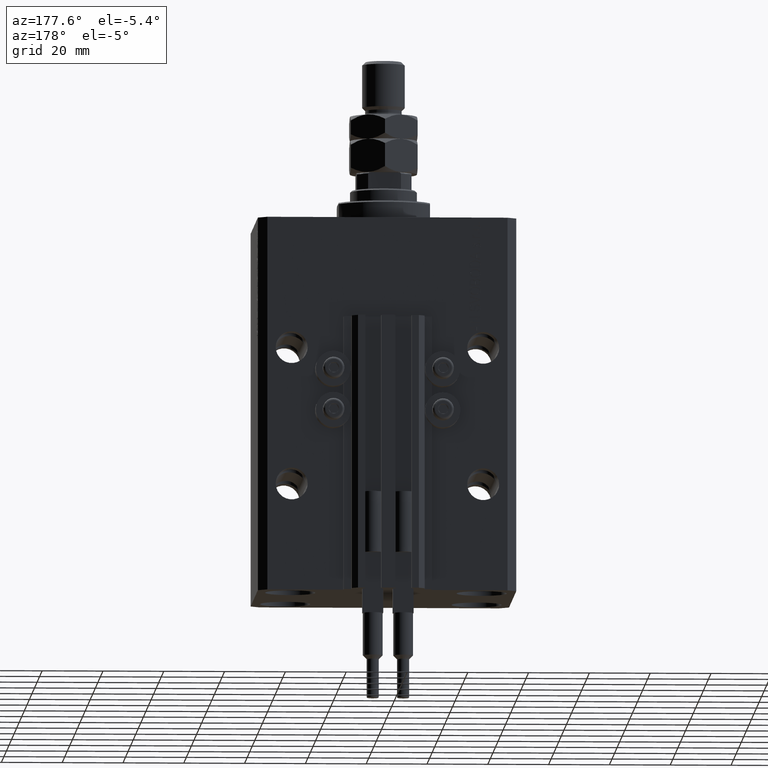
[diagram: clean part render]
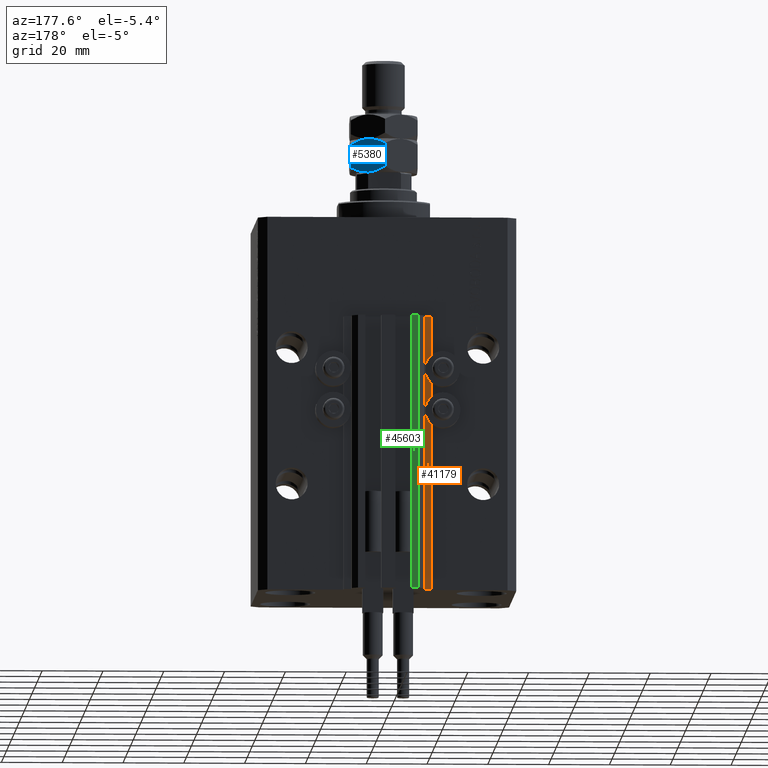
[diagram: same view with three faces highlighted in distinct colors, each labeled with its STEP entity id]
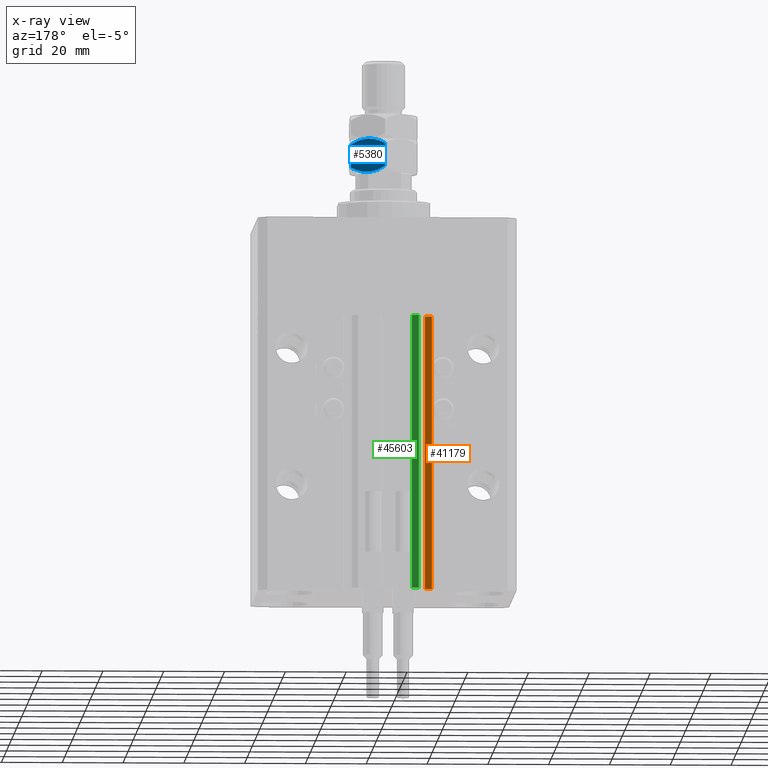
[diagram: x-ray of the same camera — body ghosted, the three highlighted faces saturated]
A machine part, auxiliary view with three faces highlighted in distinct colors.
The next image is the same camera in x-ray (body ghosted, the three faces saturated) — at least one of them is partly hidden behind the body in this view.
Their STEP definitions:

[orange] entity #41179 — the highlighted planar face has unit normal (0, 1, 0).
#2599 = VECTOR ( 'NONE', #10306, 1000.000000000000000 ) ;
#4446 = DIRECTION ( 'NONE',  ( 0.000000000000000000, 0.000000000000000000, 1.000000000000000000 ) ) ;
#4746 = CARTESIAN_POINT ( 'NONE',  ( -12.20000000000000107, 33.99999999999998579, -33.00000000000000000 ) ) ;
#7156 = CARTESIAN_POINT ( 'NONE',  ( -12.20000000000000107, 33.99999999999998579, -123.0000000000000000 ) ) ;
#9769 = EDGE_CURVE ( 'NONE', #34241, #37339, #22725, .T. ) ;
#10306 = DIRECTION ( 'NONE',  ( 0.000000000000000000, 0.000000000000000000, 1.000000000000000000 ) ) ;
#11448 = VERTEX_POINT ( 'NONE', #46479 ) ;
#12105 = CARTESIAN_POINT ( 'NONE',  ( -12.20000000000000107, 33.99999999999998579, -123.0000000000000000 ) ) ;
#13813 = LINE ( 'NONE', #42132, #36737 ) ;
#15490 = EDGE_CURVE ( 'NONE', #34241, #37950, #30780, .T. ) ;
#17057 = LINE ( 'NONE', #44624, #41712 ) ;
#18915 = ORIENTED_EDGE ( 'NONE', *, *, #9769, .F. ) ;
#19026 = CARTESIAN_POINT ( 'NONE',  ( -12.20000000000000107, 33.99999999999998579, -123.0000000000000000 ) ) ;
#19100 = CARTESIAN_POINT ( 'NONE',  ( -12.20000000000000107, 33.99999999999998579, -123.0000000000000000 ) ) ;
#20131 = DIRECTION ( 'NONE',  ( -1.000000000000000000, 0.000000000000000000, 0.000000000000000000 ) ) ;
#22725 = LINE ( 'NONE', #7156, #2599 ) ;
#26895 = ORIENTED_EDGE ( 'NONE', *, *, #15490, .T. ) ;
#27435 = FACE_OUTER_BOUND ( 'NONE', #28470, .T. ) ;
#28470 = EDGE_LOOP ( 'NONE', ( #29426, #18915, #26895, #38695 ) ) ;
#29426 = ORIENTED_EDGE ( 'NONE', *, *, #48233, .F. ) ;
#30148 = DIRECTION ( 'NONE',  ( 0.000000000000000000, 0.000000000000000000, 1.000000000000000000 ) ) ;
#30780 = LINE ( 'NONE', #19026, #40392 ) ;
#31203 = CARTESIAN_POINT ( 'NONE',  ( -14.50000000000000000, 33.99999999999998579, -123.0000000000000000 ) ) ;
#31538 = DIRECTION ( 'NONE',  ( 0.000000000000000000, 1.000000000000000000, -0.000000000000000000 ) ) ;
#31955 = AXIS2_PLACEMENT_3D ( 'NONE', #12105, #31538, #4446 ) ;
#34241 = VERTEX_POINT ( 'NONE', #19100 ) ;
#36737 = VECTOR ( 'NONE', #30148, 1000.000000000000000 ) ;
#37339 = VERTEX_POINT ( 'NONE', #4746 ) ;
#37931 = DIRECTION ( 'NONE',  ( -1.000000000000000000, 0.000000000000000000, 0.000000000000000000 ) ) ;
#37950 = VERTEX_POINT ( 'NONE', #31203 ) ;
#38695 = ORIENTED_EDGE ( 'NONE', *, *, #45116, .T. ) ;
#40206 = PLANE ( 'NONE',  #31955 ) ;
#40392 = VECTOR ( 'NONE', #37931, 1000.000000000000000 ) ;
#41179 = ADVANCED_FACE ( 'NONE', ( #27435 ), #40206, .T. ) ;
#41712 = VECTOR ( 'NONE', #20131, 1000.000000000000000 ) ;
#42132 = CARTESIAN_POINT ( 'NONE',  ( -14.50000000000000000, 33.99999999999998579, -123.0000000000000000 ) ) ;
#44624 = CARTESIAN_POINT ( 'NONE',  ( -12.20000000000000107, 33.99999999999998579, -33.00000000000000000 ) ) ;
#45116 = EDGE_CURVE ( 'NONE', #37950, #11448, #13813, .T. ) ;
#46479 = CARTESIAN_POINT ( 'NONE',  ( -14.50000000000000000, 33.99999999999998579, -33.00000000000000000 ) ) ;
#48233 = EDGE_CURVE ( 'NONE', #37339, #11448, #17057, .T. ) ;

[blue] entity #5380 — the highlighted planar face has unit normal (-0.5, -0.866, 0).
#335 = VERTEX_POINT ( 'NONE', #2786 ) ;
#1284 = CARTESIAN_POINT ( 'NONE',  ( 4.543329525579426154, 10.07861339756131080, 11.00000000000000000 ) ) ;
#2179 = CARTESIAN_POINT ( 'NONE',  ( 3.579894028994819788, 10.63485314086127431, 0.2081220748670722098 ) ) ;
#2614 = CARTESIAN_POINT ( 'NONE',  ( 7.420105971005182433, 8.417705742396377033, 10.79187792513293154 ) ) ;
#2786 = CARTESIAN_POINT ( 'NONE',  ( 9.006588997586899406E-16, 12.70170592217176342, 1.701705922171758312 ) ) ;
#3093 = CARTESIAN_POINT ( 'NONE',  ( 6.470625887979895019, 8.965888323921213043, 10.95634070256487824 ) ) ;
#3158 = CARTESIAN_POINT ( 'NONE',  ( 0.8624791307172143817, 12.20375336388174503, 1.203753363881742811 ) ) ;
#4193 = CARTESIAN_POINT ( 'NONE',  ( 5.499999999999999112, 9.526279441628826561, 0.000000000000000000 ) ) ;
#4455 = PLANE ( 'NONE',  #49088 ) ;
#5380 = ADVANCED_FACE ( 'NONE', ( #38926 ), #4455, .F. ) ;
#7774 = DIRECTION ( 'NONE',  ( 0.8660254037844387076, -0.4999999999999998890, 0.000000000000000000 ) ) ;
#8947 = CARTESIAN_POINT ( 'NONE',  ( 3.602926119288152318, 10.62155555733041901, 10.83109139163524581 ) ) ;
#10144 = CARTESIAN_POINT ( 'NONE',  ( 11.00000000000000000, 6.350852961085883486, 1.701705922171761198 ) ) ;
#10341 = CARTESIAN_POINT ( 'NONE',  ( 3.115032419653387397, 10.90324111615047364, 0.3282192120904029453 ) ) ;
#11022 = CARTESIAN_POINT ( 'NONE',  ( 11.00000000000000000, 6.350852961085883486, 9.298294077828240134 ) ) ;
#11691 = B_SPLINE_CURVE_WITH_KNOTS ( 'NONE', 3,
 ( #11022, #30188, #50096, #22516, #2614, #3093, #18191, #46249 ),
 .UNSPECIFIED., .F., .F.,
 ( 4, 2, 2, 4 ),
 ( 2.544311317614349830E-07, 0.003291871675740032106, 0.004937680298044164716, 0.006583488920348298627 ),
 .UNSPECIFIED. ) ;
#11792 = B_SPLINE_CURVE_WITH_KNOTS ( 'NONE', 3,
 ( #36283, #1284, #8947, #17364, #28363, #40602 ),
 .UNSPECIFIED., .F., .F.,
 ( 4, 2, 4 ),
 ( 0.006583488920348298627, 0.009852050593448711396, 0.01312061226654912156 ),
 .UNSPECIFIED. ) ;
#13339 = B_SPLINE_CURVE_WITH_KNOTS ( 'NONE', 3,
 ( #41993, #3158, #18746, #10341, #2179, #17755, #33350, #4193 ),
 .UNSPECIFIED., .F., .F.,
 ( 4, 2, 2, 4 ),
 ( 2.544311317623912303E-07, 0.003291871675740029504, 0.004937680298044162114, 0.006583488920348296025 ),
 .UNSPECIFIED. ) ;
#14559 = VERTEX_POINT ( 'NONE', #44093 ) ;
#15101 = CARTESIAN_POINT ( 'NONE',  ( 5.499999999999999112, 9.526279441628826561, 0.000000000000000000 ) ) ;
#15955 = DIRECTION ( 'NONE',  ( -0.4999999999999998890, -0.8660254037844387076, 0.000000000000000000 ) ) ;
#16168 = ORIENTED_EDGE ( 'NONE', *, *, #48341, .F. ) ;
#17364 = CARTESIAN_POINT ( 'NONE',  ( 1.748214531935807559, 11.69237379155741152, 10.22231519547797518 ) ) ;
#17755 = CARTESIAN_POINT ( 'NONE',  ( 4.529374112020105869, 10.08667055933643830, 0.04365929743512447087 ) ) ;
#18191 = CARTESIAN_POINT ( 'NONE',  ( 5.981709287746640236, 9.248164454677155533, 11.00000000000000000 ) ) ;
#18746 = CARTESIAN_POINT ( 'NONE',  ( 1.744478007639208350, 11.69453107486588195, 0.7806233875467714078 ) ) ;
#20674 = CARTESIAN_POINT ( 'NONE',  ( 11.00000000000000000, 6.350852961085883486, 11.00000000000000000 ) ) ;
#21816 = ORIENTED_EDGE ( 'NONE', *, *, #47481, .F. ) ;
#22382 = CARTESIAN_POINT ( 'NONE',  ( 7.397073880711847238, 8.431003325927232339, 0.1689086083647579339 ) ) ;
#22516 = CARTESIAN_POINT ( 'NONE',  ( 7.884967580346613936, 8.149317767107177701, 10.67178078790959717 ) ) ;
#22670 = EDGE_LOOP ( 'NONE', ( #49890, #23059, #21816, #46038, #45785, #16168 ) ) ;
#23059 = ORIENTED_EDGE ( 'NONE', *, *, #46546, .F. ) ;
#23963 = DIRECTION ( 'NONE',  ( -0.000000000000000000, -0.000000000000000000, -1.000000000000000000 ) ) ;
#24537 = VECTOR ( 'NONE', #23963, 1000.000000000000000 ) ;
#25772 = LINE ( 'NONE', #26752, #24537 ) ;
#26752 = CARTESIAN_POINT ( 'NONE',  ( 0.000000000000000000, 12.70170592217176342, 11.00000000000000000 ) ) ;
#26940 = EDGE_CURVE ( 'NONE', #335, #40427, #13339, .T. ) ;
#27110 = CARTESIAN_POINT ( 'NONE',  ( 11.00000000000000000, 6.350852961085883486, 1.701705922171761198 ) ) ;
#28181 = B_SPLINE_CURVE_WITH_KNOTS ( 'NONE', 3,
 ( #41053, #37465, #22382, #41537, #45125, #10144 ),
 .UNSPECIFIED., .F., .F.,
 ( 4, 2, 4 ),
 ( 0.006583488920348296025, 0.009852050593448707927, 0.01312061226654912330 ),
 .UNSPECIFIED. ) ;
#28363 = CARTESIAN_POINT ( 'NONE',  ( 0.8614806024966432663, 12.20432986441868728, 9.795670135581396210 ) ) ;
#30188 = CARTESIAN_POINT ( 'NONE',  ( 10.13752086928278295, 6.848805519375901874, 9.796246636118256745 ) ) ;
#30585 = EDGE_CURVE ( 'NONE', #14559, #49929, #48238, .T. ) ;
#31927 = DIRECTION ( 'NONE',  ( -0.000000000000000000, -0.000000000000000000, -1.000000000000000000 ) ) ;
#33350 = CARTESIAN_POINT ( 'NONE',  ( 5.018290712253357100, 9.804394428580492260, -1.345088320239828938E-15 ) ) ;
#35372 = CARTESIAN_POINT ( 'NONE',  ( 11.00000000000000000, 6.350852961085883486, 11.00000000000000000 ) ) ;
#36283 = CARTESIAN_POINT ( 'NONE',  ( 5.499999999999998224, 9.526279441628819455, 11.00000000000000000 ) ) ;
#37465 = CARTESIAN_POINT ( 'NONE',  ( 6.456670474420574735, 8.973945485696338764, -1.192622389734053694E-15 ) ) ;
#38261 = VERTEX_POINT ( 'NONE', #39037 ) ;
#38926 = FACE_OUTER_BOUND ( 'NONE', #22670, .T. ) ;
#39037 = CARTESIAN_POINT ( 'NONE',  ( 5.499999999999998224, 9.526279441628819455, 11.00000000000000000 ) ) ;
#39819 = VECTOR ( 'NONE', #31927, 1000.000000000000000 ) ;
#40427 = VERTEX_POINT ( 'NONE', #15101 ) ;
#40602 = CARTESIAN_POINT ( 'NONE',  ( -4.327962126576701651E-16, 12.70170592217176342, 9.298294077828241910 ) ) ;
#41053 = CARTESIAN_POINT ( 'NONE',  ( 5.499999999999999112, 9.526279441628826561, 0.000000000000000000 ) ) ;
#41454 = EDGE_CURVE ( 'NONE', #14559, #38261, #11691, .T. ) ;
#41537 = CARTESIAN_POINT ( 'NONE',  ( 9.251785468064189999, 7.360185091700237159, 0.7776848045220270400 ) ) ;
#41538 = VERTEX_POINT ( 'NONE', #47286 ) ;
#41993 = CARTESIAN_POINT ( 'NONE',  ( 9.006588997586899406E-16, 12.70170592217176342, 1.701705922171758312 ) ) ;
#44093 = CARTESIAN_POINT ( 'NONE',  ( 11.00000000000000000, 6.350852961085883486, 9.298294077828240134 ) ) ;
#45125 = CARTESIAN_POINT ( 'NONE',  ( 10.13851939750335696, 6.848229018838962290, 1.204329864418605567 ) ) ;
#45785 = ORIENTED_EDGE ( 'NONE', *, *, #30585, .T. ) ;
#46038 = ORIENTED_EDGE ( 'NONE', *, *, #41454, .F. ) ;
#46249 = CARTESIAN_POINT ( 'NONE',  ( 5.499999999999998224, 9.526279441628819455, 11.00000000000000000 ) ) ;
#46546 = EDGE_CURVE ( 'NONE', #41538, #335, #25772, .T. ) ;
#47286 = CARTESIAN_POINT ( 'NONE',  ( -4.327962126576701651E-16, 12.70170592217176342, 9.298294077828241910 ) ) ;
#47481 = EDGE_CURVE ( 'NONE', #38261, #41538, #11792, .T. ) ;
#48238 = LINE ( 'NONE', #20674, #39819 ) ;
#48341 = EDGE_CURVE ( 'NONE', #40427, #49929, #28181, .T. ) ;
#49088 = AXIS2_PLACEMENT_3D ( 'NONE', #35372, #15955, #7774 ) ;
#49890 = ORIENTED_EDGE ( 'NONE', *, *, #26940, .F. ) ;
#49929 = VERTEX_POINT ( 'NONE', #27110 ) ;
#50096 = CARTESIAN_POINT ( 'NONE',  ( 9.255521992360790762, 7.358027808391762292, 10.21937661245322460 ) ) ;

[green] entity #45603 — the highlighted planar face has unit normal (0, 1, 0).
#2032 = ORIENTED_EDGE ( 'NONE', *, *, #30055, .T. ) ;
#2163 = LINE ( 'NONE', #37170, #10954 ) ;
#2427 = EDGE_CURVE ( 'NONE', #43915, #3124, #27879, .T. ) ;
#3124 = VERTEX_POINT ( 'NONE', #15622 ) ;
#8310 = PLANE ( 'NONE',  #13080 ) ;
#10954 = VECTOR ( 'NONE', #33332, 1000.000000000000000 ) ;
#11564 = ORIENTED_EDGE ( 'NONE', *, *, #2427, .T. ) ;
#12398 = DIRECTION ( 'NONE',  ( 0.000000000000000000, 1.000000000000000000, -0.000000000000000000 ) ) ;
#12467 = VERTEX_POINT ( 'NONE', #22445 ) ;
#13080 = AXIS2_PLACEMENT_3D ( 'NONE', #23897, #12398, #23632 ) ;
#13406 = LINE ( 'NONE', #28998, #29209 ) ;
#15622 = CARTESIAN_POINT ( 'NONE',  ( -10.00000000000000000, 39.49999999999999289, -123.0000000000000000 ) ) ;
#17269 = DIRECTION ( 'NONE',  ( 0.000000000000000000, 0.000000000000000000, 1.000000000000000000 ) ) ;
#17618 = EDGE_CURVE ( 'NONE', #43915, #48510, #24437, .T. ) ;
#18906 = ORIENTED_EDGE ( 'NONE', *, *, #23180, .F. ) ;
#19960 = CARTESIAN_POINT ( 'NONE',  ( -7.650000000000002132, 39.49999999999999289, -123.0000000000000000 ) ) ;
#20906 = ORIENTED_EDGE ( 'NONE', *, *, #17618, .F. ) ;
#21566 = EDGE_LOOP ( 'NONE', ( #18906, #20906, #11564, #2032 ) ) ;
#22445 = CARTESIAN_POINT ( 'NONE',  ( -10.00000000000000000, 39.49999999999999289, -33.00000000000000000 ) ) ;
#23180 = EDGE_CURVE ( 'NONE', #48510, #12467, #2163, .T. ) ;
#23632 = DIRECTION ( 'NONE',  ( 0.000000000000000000, 0.000000000000000000, 1.000000000000000000 ) ) ;
#23897 = CARTESIAN_POINT ( 'NONE',  ( -7.650000000000002132, 39.49999999999999289, -123.0000000000000000 ) ) ;
#24437 = LINE ( 'NONE', #40014, #36200 ) ;
#25337 = VECTOR ( 'NONE', #39102, 1000.000000000000000 ) ;
#25714 = CARTESIAN_POINT ( 'NONE',  ( -7.650000000000002132, 39.49999999999999289, -123.0000000000000000 ) ) ;
#27879 = LINE ( 'NONE', #19960, #25337 ) ;
#28998 = CARTESIAN_POINT ( 'NONE',  ( -10.00000000000000000, 39.49999999999999289, -123.0000000000000000 ) ) ;
#29209 = VECTOR ( 'NONE', #44553, 1000.000000000000000 ) ;
#30055 = EDGE_CURVE ( 'NONE', #3124, #12467, #13406, .T. ) ;
#32333 = FACE_OUTER_BOUND ( 'NONE', #21566, .T. ) ;
#32850 = CARTESIAN_POINT ( 'NONE',  ( -7.650000000000002132, 39.49999999999999289, -33.00000000000000000 ) ) ;
#33332 = DIRECTION ( 'NONE',  ( -1.000000000000000000, 0.000000000000000000, 0.000000000000000000 ) ) ;
#36200 = VECTOR ( 'NONE', #17269, 1000.000000000000000 ) ;
#37170 = CARTESIAN_POINT ( 'NONE',  ( -7.650000000000002132, 39.49999999999999289, -33.00000000000000000 ) ) ;
#39102 = DIRECTION ( 'NONE',  ( -1.000000000000000000, 0.000000000000000000, 0.000000000000000000 ) ) ;
#40014 = CARTESIAN_POINT ( 'NONE',  ( -7.650000000000002132, 39.49999999999999289, -123.0000000000000000 ) ) ;
#43915 = VERTEX_POINT ( 'NONE', #25714 ) ;
#44553 = DIRECTION ( 'NONE',  ( 0.000000000000000000, 0.000000000000000000, 1.000000000000000000 ) ) ;
#45603 = ADVANCED_FACE ( 'NONE', ( #32333 ), #8310, .T. ) ;
#48510 = VERTEX_POINT ( 'NONE', #32850 ) ;